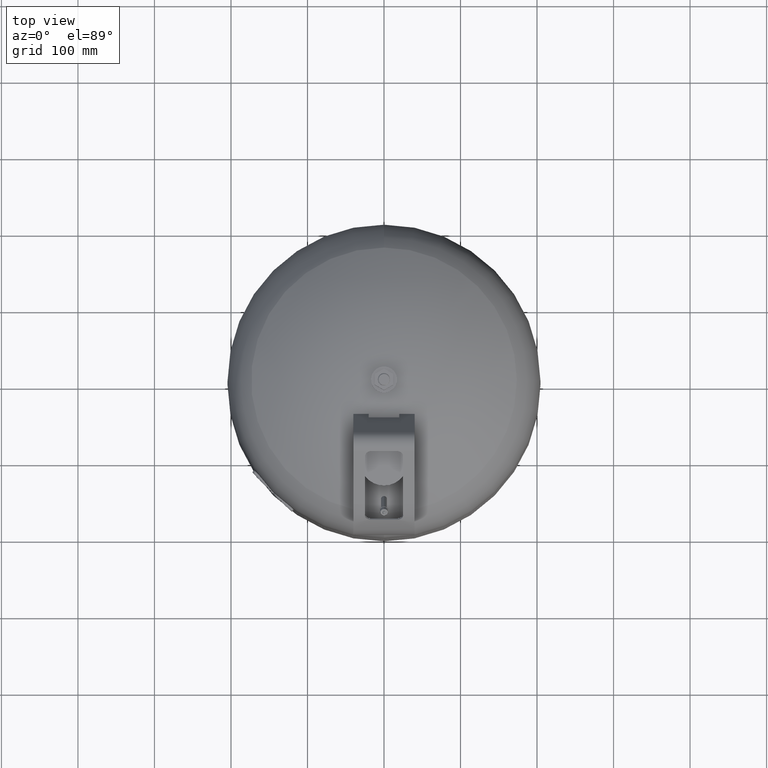
[diagram: clean part render]
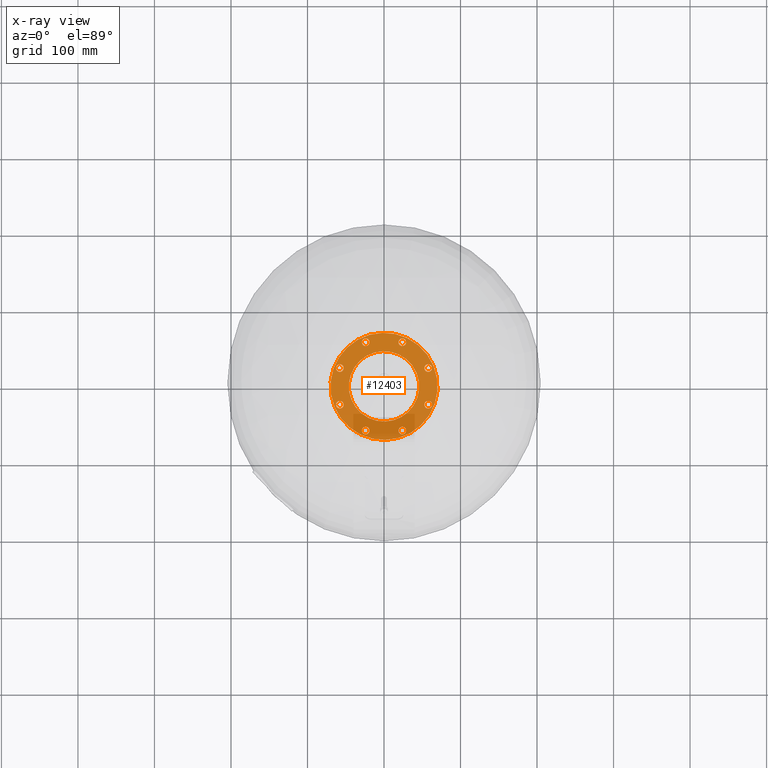
[diagram: x-ray — body ghosted, one internal face saturated and labeled with its STEP entity id]
A machine part, top view, then the same camera in x-ray: the body is ghosted and one INTERNAL B-rep face — a face not visible from any outside direction — is saturated and labeled: STEP entity #12403.
In plain terms, the highlighted planar face has unit normal (0, 0, -1).
Its self-contained STEP definition (entity closure, byte-faithful):
#11053=CARTESIAN_POINT('',(-62.361868444511842,-25.831131684643562,195.999999999999940));
#11054=VERTEX_POINT('',#11053);
#11063=CARTESIAN_POINT('',(-53.123073119398981,-22.004297360992666,195.999999999999940));
#11064=VERTEX_POINT('',#11063);
#11065=CARTESIAN_POINT('',(-57.742470781955411,-23.917714522818116,195.999999999999940));
#11066=DIRECTION('',(0.0,0.0,-1.0));
#11067=DIRECTION('',(-0.923879532511287,-0.382683432365090,0.0));
#11068=AXIS2_PLACEMENT_3D('',#11065,#11066,#11067);
#11069=CIRCLE('',#11068,5.0);
#11070=EDGE_CURVE('',#11054,#11064,#11069,.T.);
#11179=CARTESIAN_POINT('',(-62.361868444511842,25.831131684643548,195.999999999999940));
#11180=VERTEX_POINT('',#11179);
#11189=CARTESIAN_POINT('',(-53.123073119398967,22.004297360992652,195.999999999999940));
#11190=VERTEX_POINT('',#11189);
#11191=CARTESIAN_POINT('',(-57.742470781955411,23.917714522818098,195.999999999999940));
#11192=DIRECTION('',(-8.000391E-017,3.313870E-017,-1.0));
#11193=DIRECTION('',(-0.923879532511287,0.382683432365090,8.659561E-017));
#11194=AXIS2_PLACEMENT_3D('',#11191,#11192,#11193);
#11195=CIRCLE('',#11194,5.0);
#11196=EDGE_CURVE('',#11180,#11190,#11195,.T.);
#11263=CARTESIAN_POINT('',(-25.831131684643555,62.361868444511842,195.999999999999940));
#11264=VERTEX_POINT('',#11263);
#11273=CARTESIAN_POINT('',(-22.004297360992659,53.123073119398967,195.999999999999940));
#11274=VERTEX_POINT('',#11273);
#11275=CARTESIAN_POINT('',(-23.917714522818105,57.742470781955404,195.999999999999940));
#11276=DIRECTION('',(-4.686520E-017,1.131426E-016,-1.0));
#11277=DIRECTION('',(-0.382683432365090,0.923879532511287,1.224647E-016));
#11278=AXIS2_PLACEMENT_3D('',#11275,#11276,#11277);
#11279=CIRCLE('',#11278,5.0);
#11280=EDGE_CURVE('',#11264,#11274,#11279,.T.);
#11347=CARTESIAN_POINT('',(25.831131684643559,62.361868444511842,195.999999999999940));
#11348=VERTEX_POINT('',#11347);
#11357=CARTESIAN_POINT('',(22.004297360992652,53.123073119398967,195.999999999999940));
#11358=VERTEX_POINT('',#11357);
#11359=CARTESIAN_POINT('',(23.917714522818109,57.742470781955404,195.999999999999940));
#11360=DIRECTION('',(3.313870E-017,8.000391E-017,-1.0));
#11361=DIRECTION('',(0.382683432365090,0.923879532511287,8.659561E-017));
#11362=AXIS2_PLACEMENT_3D('',#11359,#11360,#11361);
#11363=CIRCLE('',#11362,5.0);
#11364=EDGE_CURVE('',#11348,#11358,#11363,.T.);
#11431=CARTESIAN_POINT('',(62.361868444511842,25.831131684643555,195.999999999999940));
#11432=VERTEX_POINT('',#11431);
#11441=CARTESIAN_POINT('',(53.123073119398974,22.004297360992652,195.999999999999940));
#11442=VERTEX_POINT('',#11441);
#11443=CARTESIAN_POINT('',(57.742470781955411,23.917714522818105,195.999999999999940));
#11444=DIRECTION('',(2.512271E-032,1.040617E-032,-1.000000000000000));
#11445=DIRECTION('',(0.923879532511287,0.382683432365090,2.719262E-032));
#11446=AXIS2_PLACEMENT_3D('',#11443,#11444,#11445);
#11447=CIRCLE('',#11446,5.0);
#11448=EDGE_CURVE('',#11432,#11442,#11447,.T.);
#11515=CARTESIAN_POINT('',(62.361868444511856,-25.831131684643548,195.999999999999940));
#11516=VERTEX_POINT('',#11515);
#11525=CARTESIAN_POINT('',(53.123073119398981,-22.004297360992645,195.999999999999940));
#11526=VERTEX_POINT('',#11525);
#11527=CARTESIAN_POINT('',(57.742470781955419,-23.917714522818102,195.999999999999940));
#11528=DIRECTION('',(-8.000391E-017,3.313870E-017,-1.0));
#11529=DIRECTION('',(0.923879532511287,-0.382683432365089,-8.659561E-017));
#11530=AXIS2_PLACEMENT_3D('',#11527,#11528,#11529);
#11531=CIRCLE('',#11530,5.000000000000001);
#11532=EDGE_CURVE('',#11516,#11526,#11531,.T.);
#11599=CARTESIAN_POINT('',(25.831131684643562,-62.361868444511842,195.999999999999940));
#11600=VERTEX_POINT('',#11599);
#11609=CARTESIAN_POINT('',(22.004297360992663,-53.123073119398981,195.999999999999940));
#11610=VERTEX_POINT('',#11609);
#11611=CARTESIAN_POINT('',(23.917714522818112,-57.742470781955411,195.999999999999940));
#11612=DIRECTION('',(-4.686520E-017,1.131426E-016,-1.000000000000000));
#11613=DIRECTION('',(0.382683432365090,-0.923879532511287,-1.224647E-016));
#11614=AXIS2_PLACEMENT_3D('',#11611,#11612,#11613);
#11615=CIRCLE('',#11614,5.0);
#11616=EDGE_CURVE('',#11600,#11610,#11615,.T.);
#11683=CARTESIAN_POINT('',(-25.831131684643541,-62.361868444511863,195.999999999999940));
#11684=VERTEX_POINT('',#11683);
#11693=CARTESIAN_POINT('',(-22.004297360992645,-53.123073119398988,195.999999999999940));
#11694=VERTEX_POINT('',#11693);
#11695=CARTESIAN_POINT('',(-23.917714522818095,-57.742470781955426,195.999999999999940));
#11696=DIRECTION('',(3.313870E-017,8.000391E-017,-1.0));
#11697=DIRECTION('',(-0.382683432365089,-0.923879532511287,-8.659561E-017));
#11698=AXIS2_PLACEMENT_3D('',#11695,#11696,#11697);
#11699=CIRCLE('',#11698,5.000000000000001);
#11700=EDGE_CURVE('',#11684,#11694,#11699,.T.);
#12029=CARTESIAN_POINT('',(64.671567275790068,26.787840265556277,196.0));
#12030=VERTEX_POINT('',#12029);
#12039=CARTESIAN_POINT('',(-64.671567275790068,-26.787840265556284,196.0));
#12040=VERTEX_POINT('',#12039);
#12041=CARTESIAN_POINT('',(2.107269E-015,-5.887436E-015,196.0));
#12042=DIRECTION('',(5.350112E-017,2.216089E-017,-1.000000000000000));
#12043=DIRECTION('',(0.923879532511287,0.382683432365090,5.790920E-017));
#12044=AXIS2_PLACEMENT_3D('',#12041,#12042,#12043);
#12045=CIRCLE('',#12044,69.999999999999986);
#12046=EDGE_CURVE('',#12040,#12030,#12045,.T.);
#12261=CARTESIAN_POINT('',(42.498458495519195,17.603437888794126,195.999999999999940));
#12262=VERTEX_POINT('',#12261);
#12271=CARTESIAN_POINT('',(-42.498458495519195,-17.603437888794137,195.999999999999940));
#12272=VERTEX_POINT('',#12271);
#12273=CARTESIAN_POINT('',(2.107269E-015,-5.887436E-015,195.999999999999940));
#12274=DIRECTION('',(5.350112E-017,2.216089E-017,-1.0));
#12275=DIRECTION('',(0.923879532511287,0.382683432365090,5.790920E-017));
#12276=AXIS2_PLACEMENT_3D('',#12273,#12274,#12275);
#12277=CIRCLE('',#12276,46.000000000000007);
#12278=EDGE_CURVE('',#12262,#12272,#12277,.T.);
#12298=CARTESIAN_POINT('',(47.810765807459077,19.803867624893385,195.999999999999940));
#12299=DIRECTION('',(0.0,0.0,-1.0));
#12300=DIRECTION('',(0.923879532511287,0.382683432365090,0.0));
#12301=AXIS2_PLACEMENT_3D('',#12298,#12299,#12300);
#12302=PLANE('',#12301);
#12303=CARTESIAN_POINT('',(2.107269E-015,-5.887436E-015,196.0));
#12304=DIRECTION('',(5.350112E-017,2.216089E-017,-1.000000000000000));
#12305=DIRECTION('',(0.923879532511287,0.382683432365090,5.790920E-017));
#12306=AXIS2_PLACEMENT_3D('',#12303,#12304,#12305);
#12307=CIRCLE('',#12306,69.999999999999986);
#12308=EDGE_CURVE('',#12030,#12040,#12307,.T.);
#12309=ORIENTED_EDGE('',*,*,#12308,.T.);
#12310=ORIENTED_EDGE('',*,*,#12046,.T.);
#12311=EDGE_LOOP('',(#12309,#12310));
#12312=FACE_OUTER_BOUND('',#12311,.T.);
#12313=CARTESIAN_POINT('',(-23.917714522818095,-57.742470781955426,195.999999999999940));
#12314=DIRECTION('',(3.313870E-017,8.000391E-017,-1.0));
#12315=DIRECTION('',(-0.382683432365089,-0.923879532511287,-8.659561E-017));
#12316=AXIS2_PLACEMENT_3D('',#12313,#12314,#12315);
#12317=CIRCLE('',#12316,5.000000000000001);
#12318=EDGE_CURVE('',#11694,#11684,#12317,.T.);
#12319=ORIENTED_EDGE('',*,*,#12318,.F.);
#12320=ORIENTED_EDGE('',*,*,#11700,.F.);
#12321=EDGE_LOOP('',(#12319,#12320));
#12322=FACE_BOUND('',#12321,.T.);
#12323=CARTESIAN_POINT('',(23.917714522818112,-57.742470781955411,195.999999999999940));
#12324=DIRECTION('',(-4.686520E-017,1.131426E-016,-1.000000000000000));
#12325=DIRECTION('',(0.382683432365090,-0.923879532511287,-1.224647E-016));
#12326=AXIS2_PLACEMENT_3D('',#12323,#12324,#12325);
#12327=CIRCLE('',#12326,5.0);
#12328=EDGE_CURVE('',#11610,#11600,#12327,.T.);
#12329=ORIENTED_EDGE('',*,*,#12328,.F.);
#12330=ORIENTED_EDGE('',*,*,#11616,.F.);
#12331=EDGE_LOOP('',(#12329,#12330));
#12332=FACE_BOUND('',#12331,.T.);
#12333=CARTESIAN_POINT('',(57.742470781955419,-23.917714522818102,195.999999999999940));
#12334=DIRECTION('',(-8.000391E-017,3.313870E-017,-1.0));
#12335=DIRECTION('',(0.923879532511287,-0.382683432365089,-8.659561E-017));
#12336=AXIS2_PLACEMENT_3D('',#12333,#12334,#12335);
#12337=CIRCLE('',#12336,5.000000000000001);
#12338=EDGE_CURVE('',#11526,#11516,#12337,.T.);
#12339=ORIENTED_EDGE('',*,*,#12338,.F.);
#12340=ORIENTED_EDGE('',*,*,#11532,.F.);
#12341=EDGE_LOOP('',(#12339,#12340));
#12342=FACE_BOUND('',#12341,.T.);
#12343=CARTESIAN_POINT('',(57.742470781955411,23.917714522818105,195.999999999999940));
#12344=DIRECTION('',(2.512271E-032,1.040617E-032,-1.000000000000000));
#12345=DIRECTION('',(0.923879532511287,0.382683432365090,2.719262E-032));
#12346=AXIS2_PLACEMENT_3D('',#12343,#12344,#12345);
#12347=CIRCLE('',#12346,5.0);
#12348=EDGE_CURVE('',#11442,#11432,#12347,.T.);
#12349=ORIENTED_EDGE('',*,*,#12348,.F.);
#12350=ORIENTED_EDGE('',*,*,#11448,.F.);
#12351=EDGE_LOOP('',(#12349,#12350));
#12352=FACE_BOUND('',#12351,.T.);
#12353=CARTESIAN_POINT('',(23.917714522818109,57.742470781955404,195.999999999999940));
#12354=DIRECTION('',(3.313870E-017,8.000391E-017,-1.0));
#12355=DIRECTION('',(0.382683432365090,0.923879532511287,8.659561E-017));
#12356=AXIS2_PLACEMENT_3D('',#12353,#12354,#12355);
#12357=CIRCLE('',#12356,5.0);
#12358=EDGE_CURVE('',#11358,#11348,#12357,.T.);
#12359=ORIENTED_EDGE('',*,*,#12358,.F.);
#12360=ORIENTED_EDGE('',*,*,#11364,.F.);
#12361=EDGE_LOOP('',(#12359,#12360));
#12362=FACE_BOUND('',#12361,.T.);
#12363=CARTESIAN_POINT('',(-23.917714522818105,57.742470781955404,195.999999999999940));
#12364=DIRECTION('',(-4.686520E-017,1.131426E-016,-1.0));
#12365=DIRECTION('',(-0.382683432365090,0.923879532511287,1.224647E-016));
#12366=AXIS2_PLACEMENT_3D('',#12363,#12364,#12365);
#12367=CIRCLE('',#12366,5.0);
#12368=EDGE_CURVE('',#11274,#11264,#12367,.T.);
#12369=ORIENTED_EDGE('',*,*,#12368,.F.);
#12370=ORIENTED_EDGE('',*,*,#11280,.F.);
#12371=EDGE_LOOP('',(#12369,#12370));
#12372=FACE_BOUND('',#12371,.T.);
#12373=CARTESIAN_POINT('',(-57.742470781955411,23.917714522818098,195.999999999999940));
#12374=DIRECTION('',(-8.000391E-017,3.313870E-017,-1.0));
#12375=DIRECTION('',(-0.923879532511287,0.382683432365090,8.659561E-017));
#12376=AXIS2_PLACEMENT_3D('',#12373,#12374,#12375);
#12377=CIRCLE('',#12376,5.0);
#12378=EDGE_CURVE('',#11190,#11180,#12377,.T.);
#12379=ORIENTED_EDGE('',*,*,#12378,.F.);
#12380=ORIENTED_EDGE('',*,*,#11196,.F.);
#12381=EDGE_LOOP('',(#12379,#12380));
#12382=FACE_BOUND('',#12381,.T.);
#12383=CARTESIAN_POINT('',(-57.742470781955411,-23.917714522818116,195.999999999999940));
#12384=DIRECTION('',(0.0,0.0,-1.0));
#12385=DIRECTION('',(-0.923879532511287,-0.382683432365090,0.0));
#12386=AXIS2_PLACEMENT_3D('',#12383,#12384,#12385);
#12387=CIRCLE('',#12386,5.0);
#12388=EDGE_CURVE('',#11064,#11054,#12387,.T.);
#12389=ORIENTED_EDGE('',*,*,#12388,.F.);
#12390=ORIENTED_EDGE('',*,*,#11070,.F.);
#12391=EDGE_LOOP('',(#12389,#12390));
#12392=FACE_BOUND('',#12391,.T.);
#12393=ORIENTED_EDGE('',*,*,#12278,.F.);
#12394=CARTESIAN_POINT('',(2.107269E-015,-5.887436E-015,195.999999999999940));
#12395=DIRECTION('',(5.350112E-017,2.216089E-017,-1.0));
#12396=DIRECTION('',(0.923879532511287,0.382683432365090,5.790920E-017));
#12397=AXIS2_PLACEMENT_3D('',#12394,#12395,#12396);
#12398=CIRCLE('',#12397,46.000000000000007);
#12399=EDGE_CURVE('',#12272,#12262,#12398,.T.);
#12400=ORIENTED_EDGE('',*,*,#12399,.F.);
#12401=EDGE_LOOP('',(#12393,#12400));
#12402=FACE_BOUND('',#12401,.T.);
#12403=ADVANCED_FACE('',(#12312,#12322,#12332,#12342,#12352,#12362,#12372,#12382,#12392,#12402),#12302,.T.);